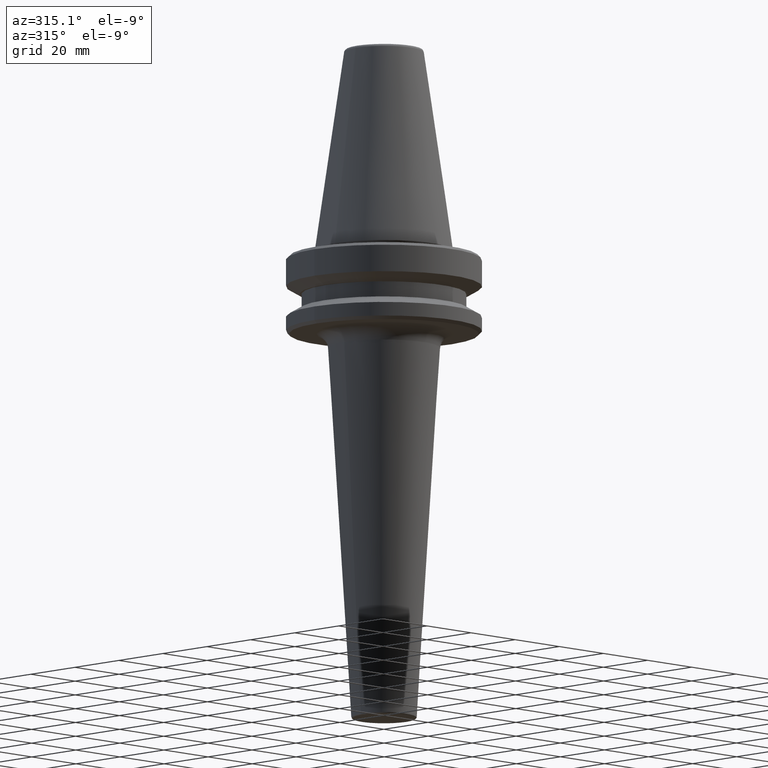
[diagram: clean part render]
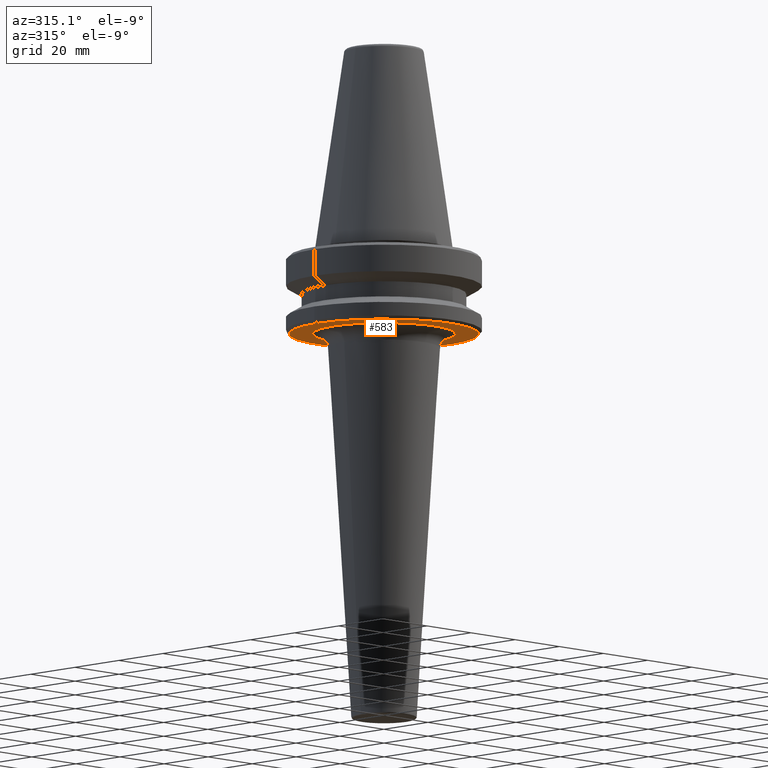
[diagram: same view with one face highlighted and labeled with its STEP entity id]
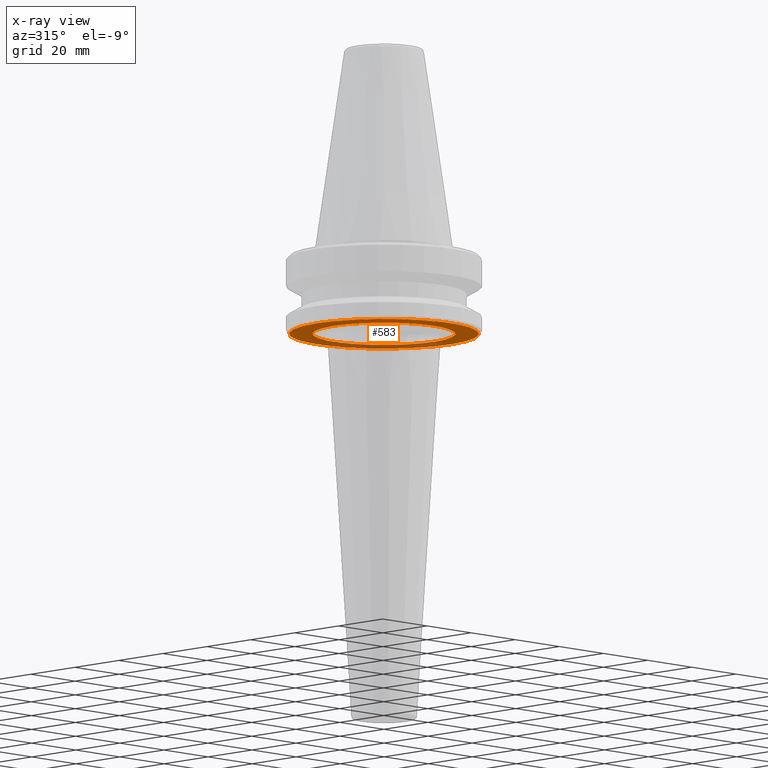
[diagram: x-ray of the same camera — body ghosted, the highlighted face saturated]
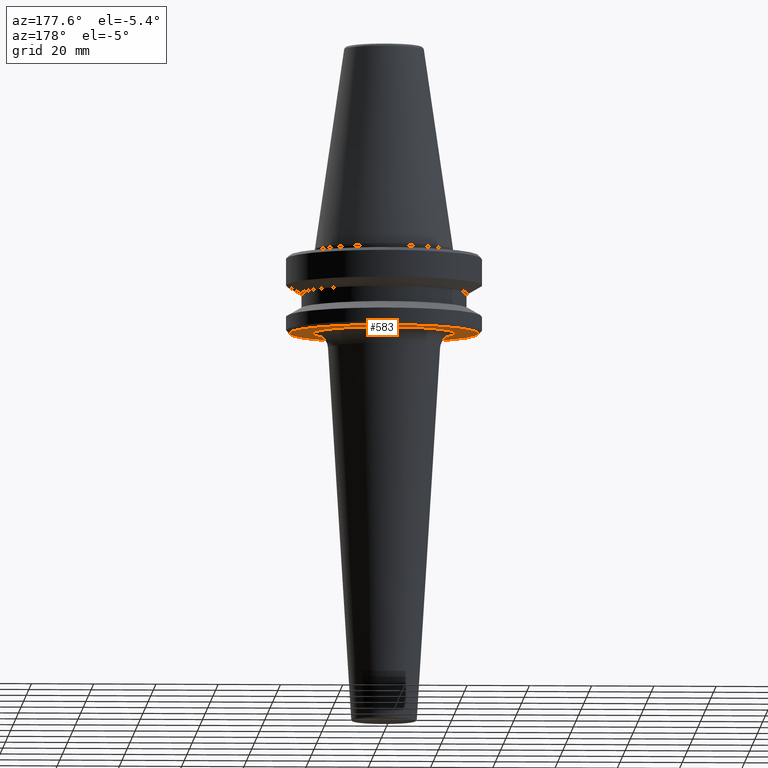
[diagram: same view with one face highlighted and labeled with its STEP entity id]
A machine part, auxiliary view. The second image highlights one B-rep face of the part: STEP entity #583.
The next image is the same camera in x-ray: the body ghosted, the highlighted face saturated — about 23% of this face is hidden behind the body in this view.
A second angle (auxiliary view) of the same face is appended — the face is thin or edge-on in the first view.
In plain terms, the highlighted planar face has unit normal (0, -0, 1).
Its self-contained STEP definition (entity closure, byte-faithful):
#60 = EDGE_CURVE ( 'NONE', #1000, #95, #883, .T. ) ;
#61 = CARTESIAN_POINT ( 'NONE',  ( 0.0000000000000000000, 0.0000000000000000000, -92.40000000000800600 ) ) ;
#67 = DIRECTION ( 'NONE',  ( -0.0000000000000000000, -0.0000000000000000000, 1.000000000000000000 ) ) ;
#79 = CARTESIAN_POINT ( 'NONE',  ( 30.49999999999241900, 0.0000000000000000000, -92.40000000000803500 ) ) ;
#95 = VERTEX_POINT ( 'NONE', #355 ) ;
#111 = FACE_OUTER_BOUND ( 'NONE', #209, .T. ) ;
#141 = EDGE_CURVE ( 'NONE', #957, #724, #1014, .T. ) ;
#142 = DIRECTION ( 'NONE',  ( -0.0000000000000000000, -0.0000000000000000000, 1.000000000000000000 ) ) ;
#159 = AXIS2_PLACEMENT_3D ( 'NONE', #906, #694, #179 ) ;
#179 = DIRECTION ( 'NONE',  ( 1.000000000000000000, 0.0000000000000000000, 0.0000000000000000000 ) ) ;
#184 = AXIS2_PLACEMENT_3D ( 'NONE', #832, #348, #895 ) ;
#201 = CIRCLE ( 'NONE', #994, 22.99031303569582000 ) ;
#209 = EDGE_LOOP ( 'NONE', ( #1003, #278 ) ) ;
#217 = DIRECTION ( 'NONE',  ( 1.000000000000000000, 0.0000000000000000000, 0.0000000000000000000 ) ) ;
#241 = DIRECTION ( 'NONE',  ( 0.0000000000000000000, -0.0000000000000000000, 1.000000000000000000 ) ) ;
#278 = ORIENTED_EDGE ( 'NONE', *, *, #615, .F. ) ;
#330 = DIRECTION ( 'NONE',  ( 1.000000000000000000, 0.0000000000000000000, 0.0000000000000000000 ) ) ;
#348 = DIRECTION ( 'NONE',  ( -0.0000000000000000000, -0.0000000000000000000, 1.000000000000000000 ) ) ;
#355 = CARTESIAN_POINT ( 'NONE',  ( 22.99031303569582000, 0.0000000000000000000, -92.40000000000800600 ) ) ;
#387 = CARTESIAN_POINT ( 'NONE',  ( -30.49999999999241900, 3.796405077356336000E-015, -92.40000000000803500 ) ) ;
#447 = EDGE_CURVE ( 'NONE', #95, #1000, #201, .T. ) ;
#564 = CARTESIAN_POINT ( 'NONE',  ( 0.0000000000000000000, 0.0000000000000000000, -92.40000000000803500 ) ) ;
#583 = ADVANCED_FACE ( 'NONE', ( #111, #734 ), #820, .F. ) ;
#615 = EDGE_CURVE ( 'NONE', #724, #957, #924, .T. ) ;
#688 = CARTESIAN_POINT ( 'NONE',  ( 0.0000000000000000000, -3.415076019915761200E-013, -92.40000000000802100 ) ) ;
#690 = AXIS2_PLACEMENT_3D ( 'NONE', #564, #67, #330 ) ;
#694 = DIRECTION ( 'NONE',  ( -0.0000000000000000000, -0.0000000000000000000, 1.000000000000000000 ) ) ;
#724 = VERTEX_POINT ( 'NONE', #387 ) ;
#734 = FACE_BOUND ( 'NONE', #751, .T. ) ;
#751 = EDGE_LOOP ( 'NONE', ( #860, #784 ) ) ;
#784 = ORIENTED_EDGE ( 'NONE', *, *, #60, .T. ) ;
#788 = AXIS2_PLACEMENT_3D ( 'NONE', #688, #241, #890 ) ;
#820 = PLANE ( 'NONE',  #788 ) ;
#832 = CARTESIAN_POINT ( 'NONE',  ( 0.0000000000000000000, 0.0000000000000000000, -92.40000000000800600 ) ) ;
#860 = ORIENTED_EDGE ( 'NONE', *, *, #447, .T. ) ;
#883 = CIRCLE ( 'NONE', #184, 22.99031303569582000 ) ;
#890 = DIRECTION ( 'NONE',  ( 1.000000000000000000, 0.0000000000000000000, 0.0000000000000000000 ) ) ;
#895 = DIRECTION ( 'NONE',  ( 1.000000000000000000, 0.0000000000000000000, 0.0000000000000000000 ) ) ;
#906 = CARTESIAN_POINT ( 'NONE',  ( 0.0000000000000000000, 0.0000000000000000000, -92.40000000000803500 ) ) ;
#924 = CIRCLE ( 'NONE', #690, 30.49999999999241900 ) ;
#957 = VERTEX_POINT ( 'NONE', #79 ) ;
#994 = AXIS2_PLACEMENT_3D ( 'NONE', #61, #142, #217 ) ;
#1000 = VERTEX_POINT ( 'NONE', #1013 ) ;
#1003 = ORIENTED_EDGE ( 'NONE', *, *, #141, .F. ) ;
#1013 = CARTESIAN_POINT ( 'NONE',  ( -22.99031303569582000, 2.815501327056055800E-015, -92.40000000000800600 ) ) ;
#1014 = CIRCLE ( 'NONE', #159, 30.49999999999241900 ) ;